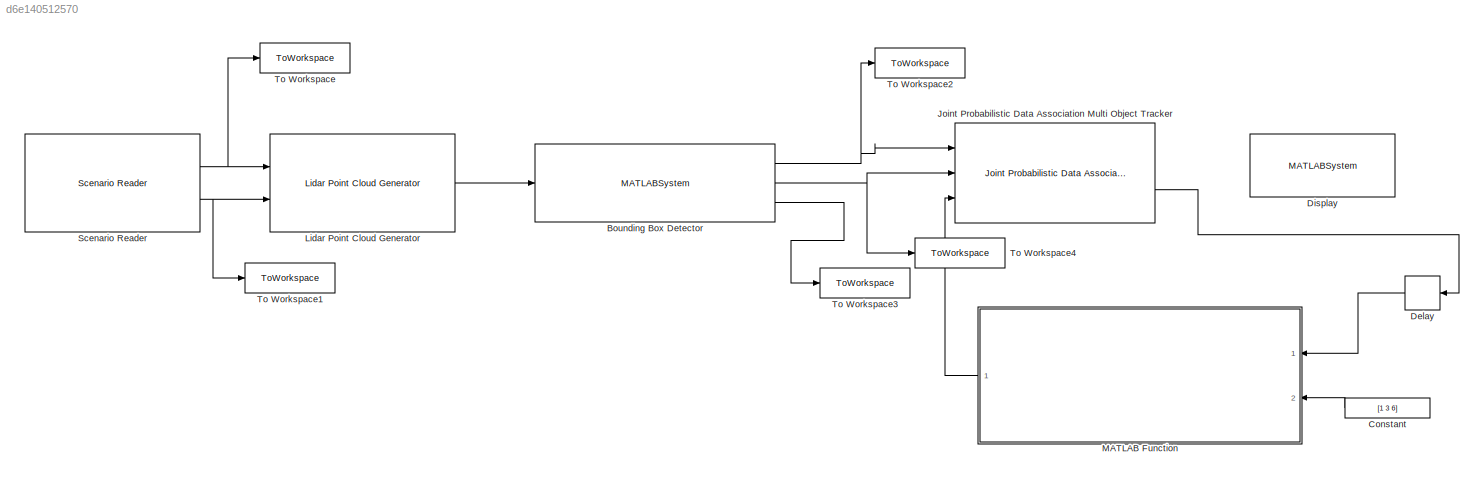
MODEL slx_d6e140512570
KIND model
CONFIG AbsTol = auto
CONFIG EnableMultiTasking = off
CONFIG FixedStep = auto
CONFIG MaxStep = auto
CONFIG MinStep = auto
CONFIG RelTol = 1e-3
CONFIG SampleTimeConstraint = Unconstrained
CONFIG SolverName = VariableStepAuto
CONFIG StartTime = 0.0
CONFIG StopTime = 10.0
BLOCK [MATLABSystem] Bounding Box Detector
  DetectionBusName = detectionBus
  EgoVehicleRadius = 2
  GroundMaxAngularDistance = 5
  GroundMaxDistance = 0.3
  GroundReferenceVector = [ 0, 0, 1 ]
  MaskDisplay = disp(['Helper' char(10) 'Bounding Box Detector']);\nport_label('input',1,['Point Cloud' char(10) 'Locations']);\nport_label('output',1,'Detections');\nport_label('output',2,'Current Time');\nport_label('output',3,'Segmentation Information');
  MaskType = HelperBoundingBoxDetectorBlock
  MaxZDistanceCluster = 3
  MeasurementNoise = blkdiag( eye( 3 ), 10, eye( 3 ) )
  MeasurementParameters = struct.empty( 0, 1 )
  MinDetectionsPerCluster = 2
  MinZDistanceCluster = -3
  NumLidarPoints = 55000
  Ports = [1, 3]
  SegmentationBusName = segmentationBus
  SegmentationMinDistance = 1.6
  SimulateUsing = Code generation
  System = HelperBoundingBoxDetectorBlock
  XLimits = [ -70, 70 ]
  YLimits = [ -6, 6 ]
  ZLimits = [ -2, 10 ]
BLOCK [Constant] Constant
  Commented = on
  Value = [1 3 6]
BLOCK [Delay] Delay
  Commented = on
  DelayLength = 1
  InputPortMap = u0
  Ports = [1, 1]
BLOCK [MATLABSystem] Display
  Commented = on
  DetectorBlockName = Bounding Box Detector
  DimensionIndex = [ 9, 11, 13 ]
  LidarDataReaderBlockName = Lidar Point Cloud Generator
  MaskDisplay = disp(['Helper' char(10) 'Lidar Example Display']);
  MaskType = HelperLidarExampleDisplayBlock
  Ports = []
  PositionIndex = [ 1, 3, 6 ]
  RecordGIF = false
  SimulateUsing = Interpreted execution
  System = HelperLidarExampleDisplayBlock
  TrackerBlockName = Joint Probabilistic Data Association Multi Object Tracker
  VelocityIndex = [ 2, 4, 7 ]
  YawIndex = 8
BLOCK [Reference] Joint Probabilistic Data Association Multi Object Tracker  REF=motalgorithmslib/Joint Probabilistic Data Association Multi Object Tracker
  Commented = on
  Ports = [3, 2]
  SourceBlock = motalgorithmslib/Joint Probabilistic Data Association Multi Object Tracker
  SourceProductBaseCode = TF
  SourceType = fusion.simulink.trackerJPDA
BLOCK [Reference] Lidar Point Cloud Generator  REF=drivingscenarioandsensors/Lidar Point Cloud Generator
  Ports = [2, 1]
  SourceBlock = drivingscenarioandsensors/Lidar Point Cloud Generator
  SourceProductBaseCode = DR
  SourceType = lidarPointCloudGenerator
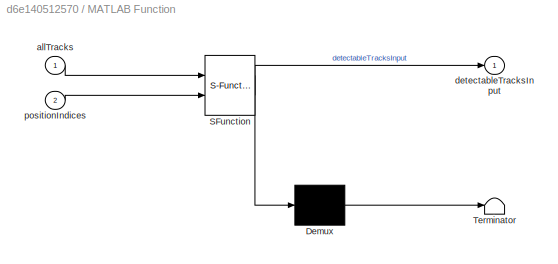
BLOCK [SubSystem] MATLAB Function
  Commented = on
  ErrorFcn = Stateflow.Translate.translate
  PermitHierarchicalResolution = ExplicitOnly
  Ports = [2, 1]
  RequestExecContextInheritance = off
  SFBlockType = MATLAB Function
  TreatAsAtomicUnit = on
BLOCK [Demux] MATLAB Function/ Demux 
  Outputs = 1
  Ports = [1, 1]
BLOCK [S-Function] MATLAB Function/ SFunction 
  EnableBusSupport = on
  FunctionName = sf_sfun
  PortCounts = [2 2]
  Ports = [2, 2]
  SFcnIsStateOwnerBlock = off
  SFunctionDeploymentMode = off
  Tag = Stateflow S-Function 2
BLOCK [Terminator] MATLAB Function/ Terminator 
BLOCK [Inport] MATLAB Function/allTracks
BLOCK [Outport] MATLAB Function/detectableTracksInput
BLOCK [Inport] MATLAB Function/positionIndices
  Port = 2
BLOCK [Reference] Scenario Reader  REF=drivingscenarioandsensors/Scenario Reader
  Ports = [0, 2]
  SourceBlock = drivingscenarioandsensors/Scenario Reader
  SourceProductBaseCode = DR
  SourceType = driving.scenario.internal.ScenarioReader
BLOCK [ToWorkspace] To Workspace
  FixptAsFi = on
  MaxDataPoints = inf
  Ports = [1]
  SampleTime = -1
  SaveFormat = Timeseries
  VariableName = reader_actors
BLOCK [ToWorkspace] To Workspace1
  FixptAsFi = on
  MaxDataPoints = inf
  Ports = [1]
  SampleTime = -1
  SaveFormat = Timeseries
  VariableName = reader_ego
BLOCK [ToWorkspace] To Workspace2
  FixptAsFi = on
  MaxDataPoints = inf
  Ports = [1]
  SampleTime = -1
  SaveFormat = Timeseries
  VariableName = detections_out
BLOCK [ToWorkspace] To Workspace3
  FixptAsFi = on
  MaxDataPoints = inf
  Ports = [1]
  SampleTime = -1
  SaveFormat = Timeseries
  VariableName = segmentation_out
BLOCK [ToWorkspace] To Workspace4
  FixptAsFi = on
  MaxDataPoints = inf
  Ports = [1]
  SampleTime = -1
  SaveFormat = Timeseries
  VariableName = currenttime_out
NET Bounding Box Detector:1 -> Joint Probabilistic Data Association Multi Object Tracker:1, To Workspace2:1
NET Bounding Box Detector:2 -> Joint Probabilistic Data Association Multi Object Tracker:2, To Workspace4:1
LINE Bounding Box Detector:3 -> To Workspace3:1
LINE Constant:1 -> MATLAB Function:2
LINE Delay:1 -> MATLAB Function:1
LINE Joint Probabilistic Data Association Multi Object Tracker:2 -> Delay:1
LINE Lidar Point Cloud Generator:1 -> Bounding Box Detector:1
LINE MATLAB Function:1 -> Joint Probabilistic Data Association Multi Object Tracker:3
NET Scenario Reader:1 -> Lidar Point Cloud Generator:1, To Workspace:1
NET Scenario Reader:2 -> Lidar Point Cloud Generator:2, To Workspace1:1
note: NET lines group one-source signal fan-out (src -> all destinations, sorted); 1:1 wires keep LINE
CHART MATLAB Function states=1 transitions=1
  STATE_LABEL 'eML_blk_kernel()'
  STATE_LABEL 'SCRIPT:\nfunction detectableTracksInput = CalculateDetectability(allTracks, positionIndices)\n% This function calculates the probability of detection for each track. The\n% helperCalcDetectability function is used to compute the probability after\n% extracting the tracks from the bus.\ntracks = allTracks.Tracks(1:allTracks.NumTracks);\ndetectableTracksInput = helperCalcDetectability(tracks, positionIndi...<+10ch>'
CHART  states=0 transitions=0
